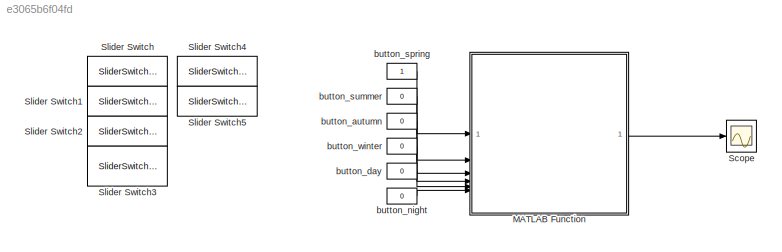
MODEL slx_e3065b6f04fd
KIND model
CONFIG AbsTol = auto
CONFIG EnableMultiTasking = off
CONFIG FixedStep = auto
CONFIG MaxStep = auto
CONFIG MinStep = auto
CONFIG RelTol = 1e-3
CONFIG SampleTimeConstraint = Unconstrained
CONFIG SolverName = VariableStepAuto
CONFIG StartTime = 0.0
CONFIG StopTime = 10.0
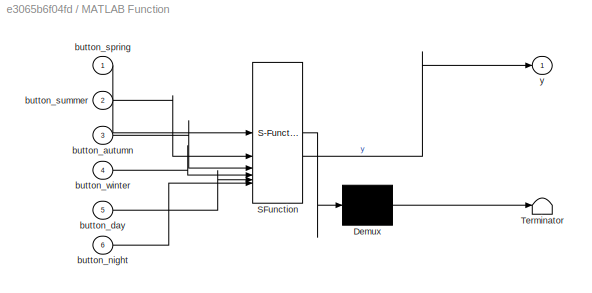
BLOCK [SubSystem] MATLAB Function
  ErrorFcn = Stateflow.Translate.translate
  LibrarySourceBlock = simulink/User-Defined\nFunctions/MATLAB Function
  PermitHierarchicalResolution = ExplicitOnly
  SFBlockType = MATLAB Function
  TreatAsAtomicUnit = on
BLOCK [Demux] MATLAB Function/ Demux 
  Outputs = 1
BLOCK [S-Function] MATLAB Function/ SFunction 
  EnableBusSupport = on
  FunctionName = sf_sfun
  PortCounts = [6 2]
  SFcnIsStateOwnerBlock = off
  SFunctionDeploymentMode = off
  Tag = Stateflow S-Function 2
BLOCK [Terminator] MATLAB Function/ Terminator 
BLOCK [Inport] MATLAB Function/button_autumn
  Port = 3
BLOCK [Inport] MATLAB Function/button_day
  Port = 5
BLOCK [Inport] MATLAB Function/button_night
  Port = 6
BLOCK [Inport] MATLAB Function/button_spring
BLOCK [Inport] MATLAB Function/button_summer
  Port = 2
BLOCK [Inport] MATLAB Function/button_winter
  Port = 4
BLOCK [Outport] MATLAB Function/y
BLOCK [Scope] Scope
  Floating = off
  NumInputPorts = 1
  ScopeSpecificationString = Simulink.scopes.TimeScopeBlockCfg('CurrentConfiguration', extmgr.ConfigurationSet(extmgr.Configuration('Core','General UI',true),extmgr.Configuration('Core','Source UI',true),extmgr.Configuration('Sources','WiredSimulink',true),extmgr.Configuration('Visuals','Time Domain',true),extmgr.Configuration('Tools','Plot Navigation',true),extmgr.Configuration('Tools','Measurements',true,'Version','2022b'))...<+19ch>
BLOCK [SliderSwitchBlock] Slider Switch
BLOCK [SliderSwitchBlock] Slider Switch1
BLOCK [SliderSwitchBlock] Slider Switch2
BLOCK [SliderSwitchBlock] Slider Switch3
BLOCK [SliderSwitchBlock] Slider Switch4
BLOCK [SliderSwitchBlock] Slider Switch5
BLOCK [Constant] button_autumn
  NameLocation = left
  Value = 0
BLOCK [Constant] button_day
  NameLocation = left
  Value = 0
BLOCK [Constant] button_night
  NameLocation = left
  Value = 0
BLOCK [Constant] button_spring
  NameLocation = left
BLOCK [Constant] button_summer
  NameLocation = left
  Value = 0
BLOCK [Constant] button_winter
  NameLocation = left
  Value = 0
LINE MATLAB Function:1 -> Scope:1
LINE button_autumn:1 -> MATLAB Function:3
LINE button_day:1 -> MATLAB Function:5
LINE button_night:1 -> MATLAB Function:6
LINE button_spring:1 -> MATLAB Function:1
LINE button_summer:1 -> MATLAB Function:2
LINE button_winter:1 -> MATLAB Function:4
CHART MATLAB Function states=1 transitions=1
  STATE_LABEL 'eML_blk_kernel()'
  STATE_LABEL "SCRIPT:\n\nfunction y = fcn(button_spring, button_summer, button_autumn, button_winter, button_day, button_night)\n    persistent loadedData;\n    timeVector = [0,1,2,3,4,5];\n    % Default values\n    default_season = 'spring';\n    default_time = 'allday';\n    if sum([button_spring, button_summer, button_autumn, button_winter] == 1) >1\n        button_spring = 0;\n        button_summer = 0;\n        butto...<+2029ch>"
CHART  states=0 transitions=0
